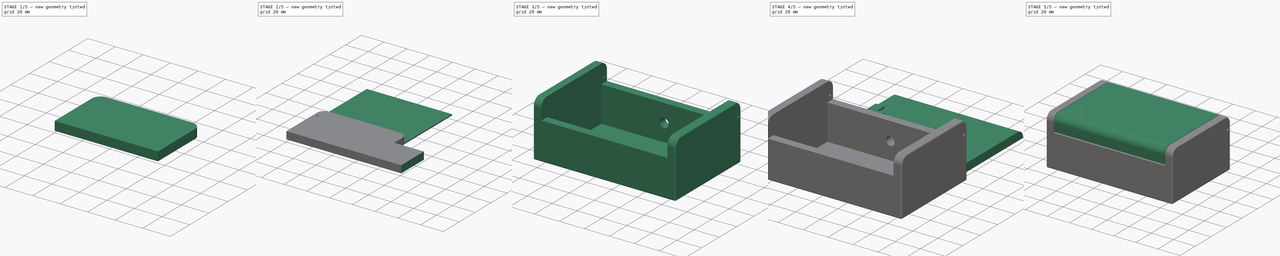
[diagram: build sequence overview — one tinted view per stage of 5, left to right]
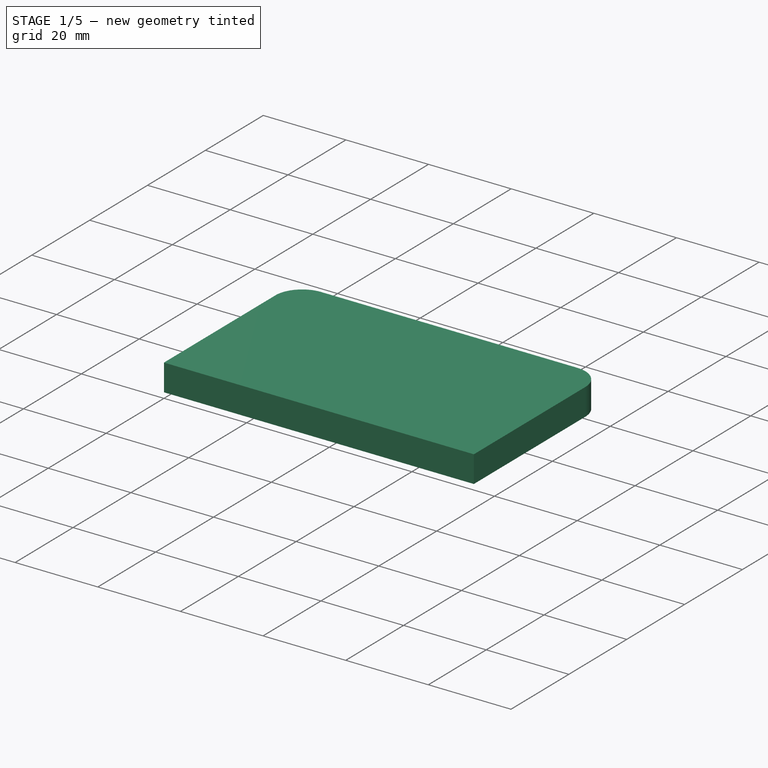
[diagram: stage 1 of 5 — iso view after this stage's code; geometry added in this stage tinted green]
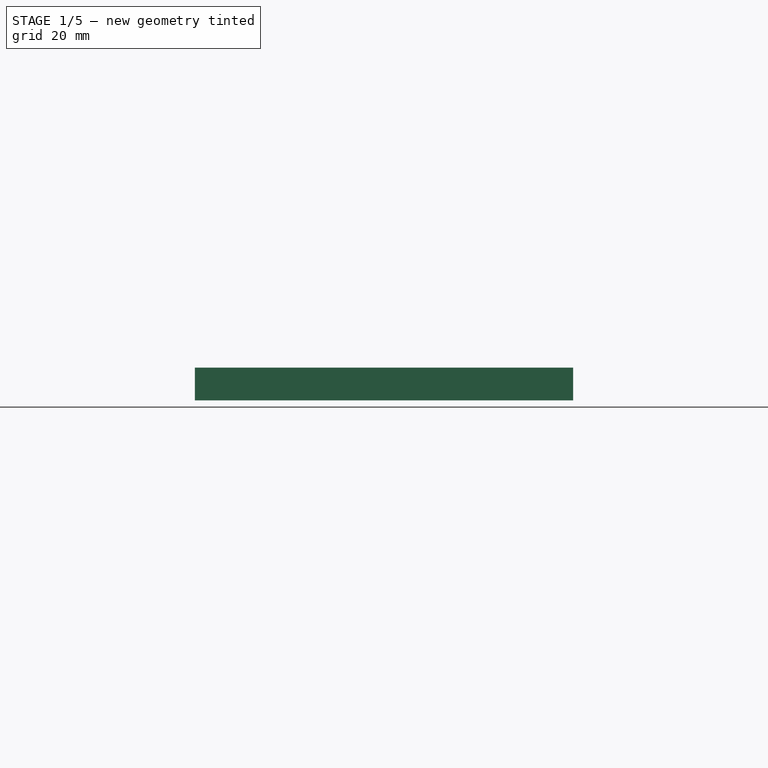
[diagram: stage 1 of 5 — front view after this stage's code; geometry added in this stage tinted green]
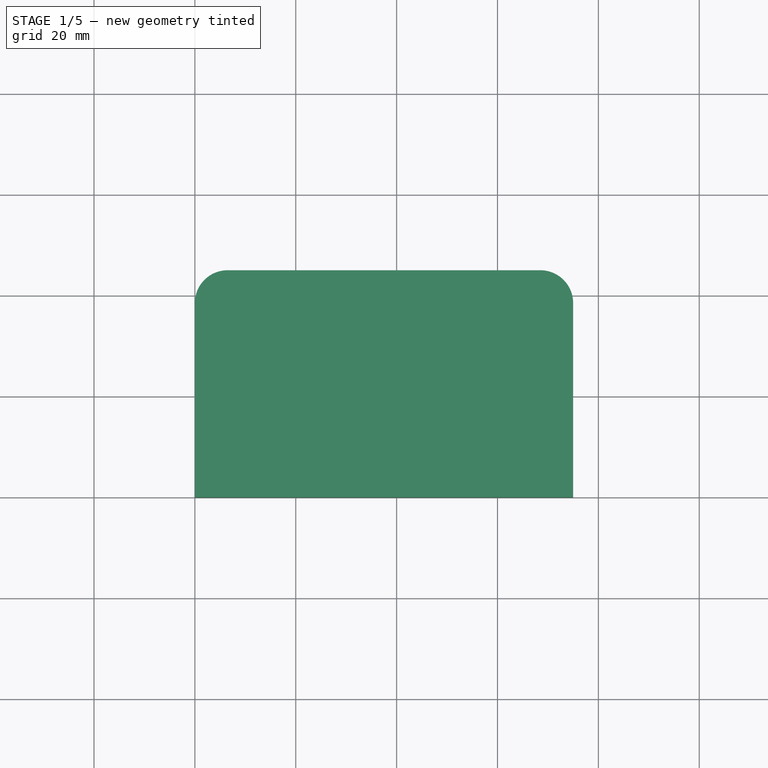
[diagram: stage 1 of 5 — top view after this stage's code; geometry added in this stage tinted green]
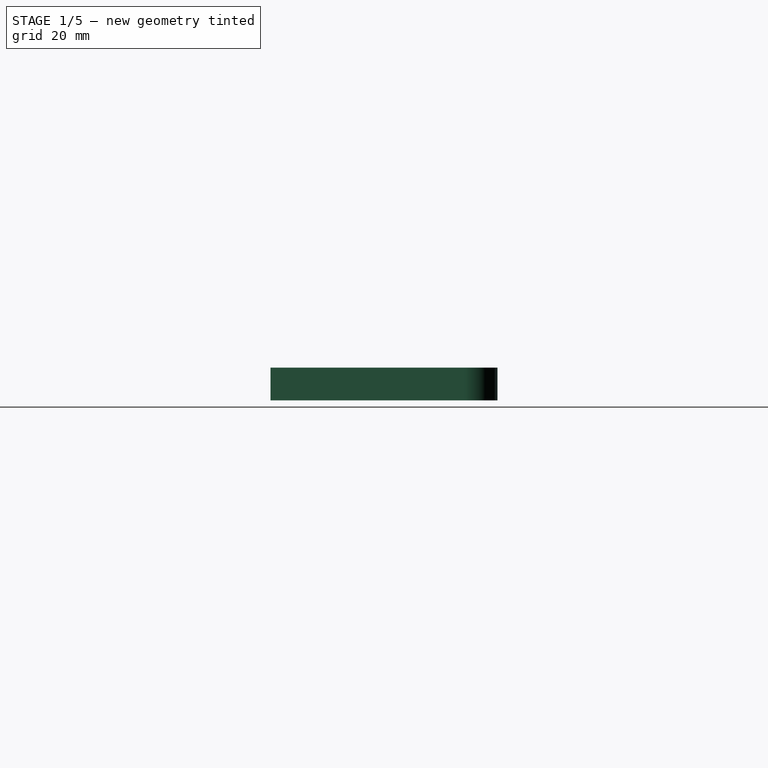
[diagram: stage 1 of 5 — right view after this stage's code; geometry added in this stage tinted green]
FCSTD DOCUMENT  (FreeCAD 0.19R)
Label: Box
License: All rights reserved
LicenseURL: http://en.wikipedia.org/wiki/All_rights_reserved
objects: Sketcher::SketchObject×19, PartDesign::Pad×13, PartDesign::Body×12, PartDesign::Fillet×7, PartDesign::Pocket×6, Part::MultiFuse×2
note: 85 computed .brp shape members not serialized (recipe doc carries the construction recipe); baked Part::Feature solids carry a one-line shape summary decoded from their .brp

FEATURE [Sketcher::SketchObject] Sketch
  FullyConstrained = true
  MapMode = 5
  Support = -> [XY_Plane]
  sketch-geometry (4):
    g0: LineSegment StartX=0 StartY=45 StartZ=0 EndX=75 EndY=45 EndZ=0
    g1: LineSegment StartX=75 StartY=45 StartZ=0 EndX=75 EndY=0 EndZ=0
    g2: LineSegment StartX=75 StartY=0 StartZ=0 EndX=0 EndY=0 EndZ=0
    g3: LineSegment StartX=0 StartY=0 StartZ=0 EndX=0 EndY=45 EndZ=0
  constraints (11):
    c: Coincident(g0,g1)
    c: Coincident(g1,g2)
    c: Coincident(g2,g3)
    c: Coincident(g3,g0)
    c: Horizontal(g0)
    c: Horizontal(g2)
    c: Vertical(g1)
    c: Vertical(g3)
    c: DistanceX(g0,g0) = 75
    c: DistanceY(g1,g1) = 45
    c: Coincident(g2,g-1)
FEATURE [PartDesign::Pad] Pad
  Direction = (1,1,1)
  Length = 6.5
  Length2 = 100
  Profile = -> Sketch
  Type = 0
FEATURE [Sketcher::SketchObject] Sketch001
  FullyConstrained = true
  MapMode = 5
  Support = -> [XY_Plane001]
  sketch-geometry (4):
    g0: LineSegment StartX=0 StartY=45 StartZ=0 EndX=75 EndY=45 EndZ=0
    g1: LineSegment StartX=75 StartY=45 StartZ=0 EndX=75 EndY=0 EndZ=0
    g2: LineSegment StartX=75 StartY=0 StartZ=0 EndX=0 EndY=0 EndZ=0
    g3: LineSegment StartX=0 StartY=0 StartZ=0 EndX=0 EndY=45 EndZ=0
  constraints (11):
    c: Coincident(g0,g1)
    c: Coincident(g1,g2)
    c: Coincident(g2,g3)
    c: Coincident(g3,g0)
    c: Horizontal(g0)
    c: Horizontal(g2)
    c: Vertical(g1)
    c: Vertical(g3)
    c: DistanceX(g0,g0) = 75
    c: DistanceY(g1,g1) = 45
    c: Coincident(g2,g-1)
FEATURE [PartDesign::Pad] Pad001
  Direction = (1,1,1)
  Length = 6.5
  Length2 = 100
  Profile = -> Sketch001
  Type = 0
FEATURE [PartDesign::Body] Body009  label="BMSHolder"
  Group = -> [Sketch012,Pad010,Sketch011,Pocket001]
  Origin = -> Origin009
  Placement = pos=(0,-68.5,16) rot=(0,0,1;0rad)
  Tip = -> Pocket001
FEATURE [PartDesign::Fillet] Fillet
  Base = -> Pad [Edge1,Edge2]
  BaseFeature = -> Pad
  Radius = 6.5
  SupportTransform = false
FEATURE [PartDesign::Fillet] Fillet004
  Base = -> Pad001 [Edge2,Edge1]
  BaseFeature = -> Pad001
  Radius = 6.5
  SupportTransform = false
FEATURE [PartDesign::Fillet] Fillet005
  Base = -> Fillet004 [Face2,Edge18,Edge17]
  BaseFeature = -> Fillet004
  Radius = 1
  SupportTransform = false
FEATURE [PartDesign::Body] Body  label="BoxLeft"
  Group = -> [Sketch,Pad,Fillet,Fillet006,Sketch013,Pocket002]
  Origin = -> Origin
  Placement = pos=(0,0,0) rot=(-0.57735,0.57735,0.57735;4.18879rad)
  Tip = -> Pocket002
FEATURE [Sketcher::SketchObject] Sketch014
  FullyConstrained = true
  MapMode = 5
  Support = -> [XY_Plane001]
  sketch-geometry (1):
    g0: Circle CenterX=3.25 CenterY=34.25 CenterZ=0 NormalX=0 NormalY=0 NormalZ=1 AngleXU=0 Radius=1
  constraints (3):
    c: DistanceX(g-1,g0) = 3.25
    c: DistanceY(g-1,g0) = 34.25
    c: Radius(g0) = 1
FEATURE [PartDesign::Pocket] Pocket003
  BaseFeature = -> Fillet005
  Length = 10
  Length2 = 100
  Profile = -> Sketch014
  Reversed = true
  Type = 0
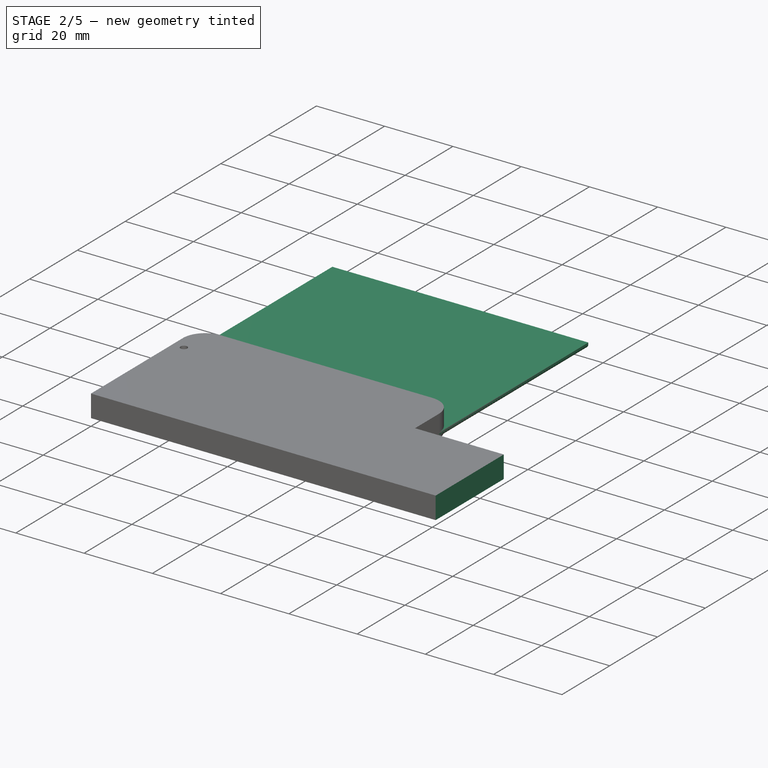
[diagram: stage 2 of 5 — iso view after this stage's code; geometry added in this stage tinted green]
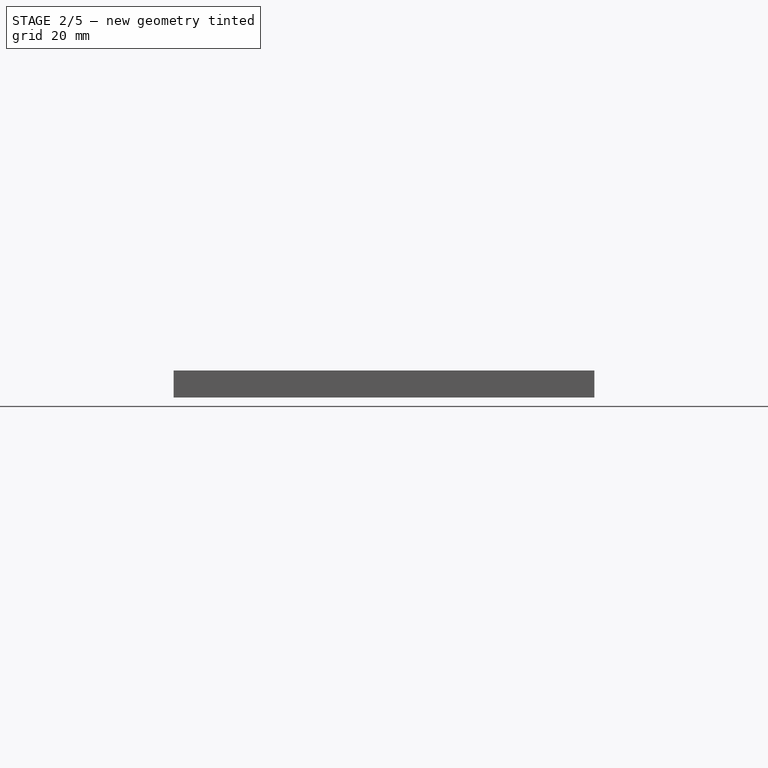
[diagram: stage 2 of 5 — front view after this stage's code; geometry added in this stage tinted green]
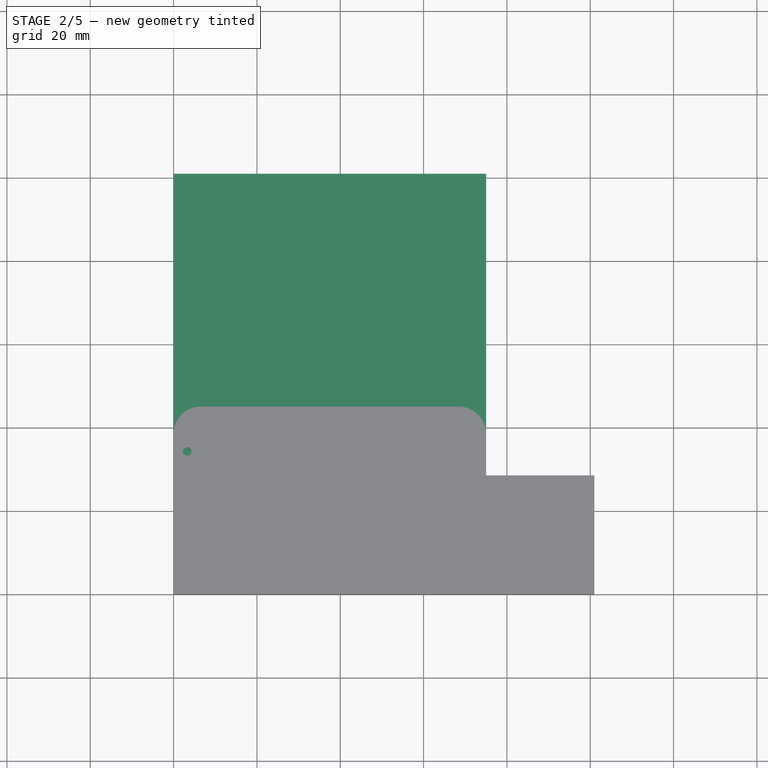
[diagram: stage 2 of 5 — top view after this stage's code; geometry added in this stage tinted green]
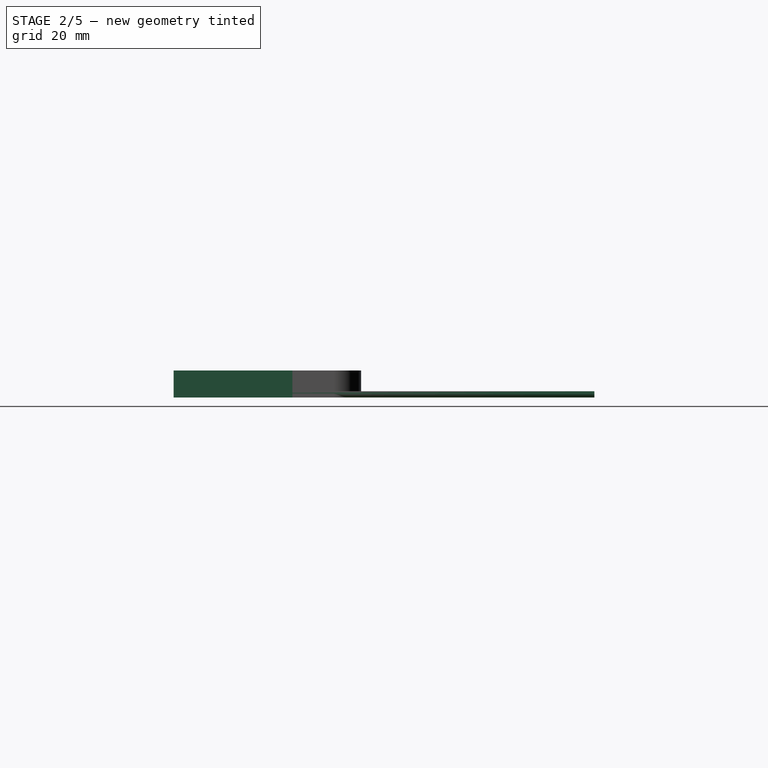
[diagram: stage 2 of 5 — right view after this stage's code; geometry added in this stage tinted green]
FEATURE [PartDesign::Body] Body002  label="BoxBack"
  Group = -> [Sketch002,Pad002]
  Origin = -> Origin002
  Placement = pos=(0,3e-16,1.5) rot=(1,0,0;1.5708rad)
  Tip = -> Pad002
FEATURE [Sketcher::SketchObject] Sketch003
  FullyConstrained = true
  MapMode = 5
  Support = -> [XY_Plane003]
  sketch-geometry (4):
    g0: LineSegment StartX=0 StartY=28.5 StartZ=0 EndX=101 EndY=28.5 EndZ=0
    g1: LineSegment StartX=101 StartY=28.5 StartZ=0 EndX=101 EndY=0 EndZ=0
    g2: LineSegment StartX=101 StartY=0 StartZ=0 EndX=0 EndY=0 EndZ=0
    g3: LineSegment StartX=0 StartY=0 StartZ=0 EndX=0 EndY=28.5 EndZ=0
  constraints (11):
    c: Coincident(g0,g1)
    c: Coincident(g1,g2)
    c: Coincident(g2,g3)
    c: Coincident(g3,g0)
    c: Horizontal(g0)
    c: Horizontal(g2)
    c: Vertical(g1)
    c: Vertical(g3)
    c: DistanceX(g0,g0) = 101
    c: DistanceY(g1,g1) = 28.5
    c: Coincident(g2,g-1)
FEATURE [PartDesign::Pad] Pad003
  Direction = (1,1,1)
  Length = 6.5
  Length2 = 100
  Profile = -> Sketch003
  Type = 0
FEATURE [PartDesign::Body] Body003  label="BoxFront"
  Group = -> [Sketch003,Pad003]
  Origin = -> Origin003
  Placement = pos=(0,-68.5,1.5) rot=(1,0,0;1.5708rad)
  Tip = -> Pad003
FEATURE [Sketcher::SketchObject] Sketch004
  FullyConstrained = true
  MapMode = 5
  Support = -> [XY_Plane004]
  sketch-geometry (4):
    g0: LineSegment StartX=0 StartY=101 StartZ=0 EndX=75 EndY=101 EndZ=0
    g1: LineSegment StartX=75 StartY=101 StartZ=0 EndX=75 EndY=0 EndZ=0
    g2: LineSegment StartX=75 StartY=0 StartZ=0 EndX=0 EndY=0 EndZ=0
    g3: LineSegment StartX=0 StartY=0 StartZ=0 EndX=0 EndY=101 EndZ=0
  constraints (11):
    c: Coincident(g0,g1)
    c: Coincident(g1,g2)
    c: Coincident(g2,g3)
    c: Coincident(g3,g0)
    c: Horizontal(g0)
    c: Horizontal(g2)
    c: Vertical(g1)
    c: Vertical(g3)
    c: DistanceX(g0,g0) = 75
    c: DistanceY(g1,g1) = 101
    c: Coincident(g2,g-1)
FEATURE [PartDesign::Pad] Pad004
  Direction = (1,1,1)
  Length = 1.5
  Length2 = 100
  Profile = -> Sketch004
  Type = 0
FEATURE [PartDesign::Fillet] Fillet006
  Base = -> Fillet [Face5,Edge18,Edge17]
  BaseFeature = -> Fillet
  Radius = 1
  SupportTransform = false
FEATURE [PartDesign::Fillet] Fillet007
  Base = -> Pad004 [Edge6,Edge11]
  BaseFeature = -> Pad004
  Radius = 1
  SupportTransform = false
FEATURE [PartDesign::Body] Body004  label="BoxBottom"
  Group = -> [Sketch004,Pad004,Fillet007]
  Origin = -> Origin004
  Placement = pos=(0,0,0) rot=(0,0,1;4.71239rad)
  Tip = -> Fillet007
FEATURE [Sketcher::SketchObject] Sketch013
  FullyConstrained = true
  MapMode = 5
  Support = -> [XY_Plane]
  sketch-geometry (1):
    g0: Circle CenterX=3.25 CenterY=34.25 CenterZ=0 NormalX=0 NormalY=0 NormalZ=1 AngleXU=0 Radius=1
  constraints (3):
    c: DistanceX(g-1,g0) = 3.25
    c: Radius(g0) = 1
    c: DistanceY(g-1,g0) = 34.25
FEATURE [PartDesign::Pocket] Pocket002
  BaseFeature = -> Fillet006
  Length = 10
  Length2 = 100
  Profile = -> Sketch013
  Reversed = true
  Type = 0
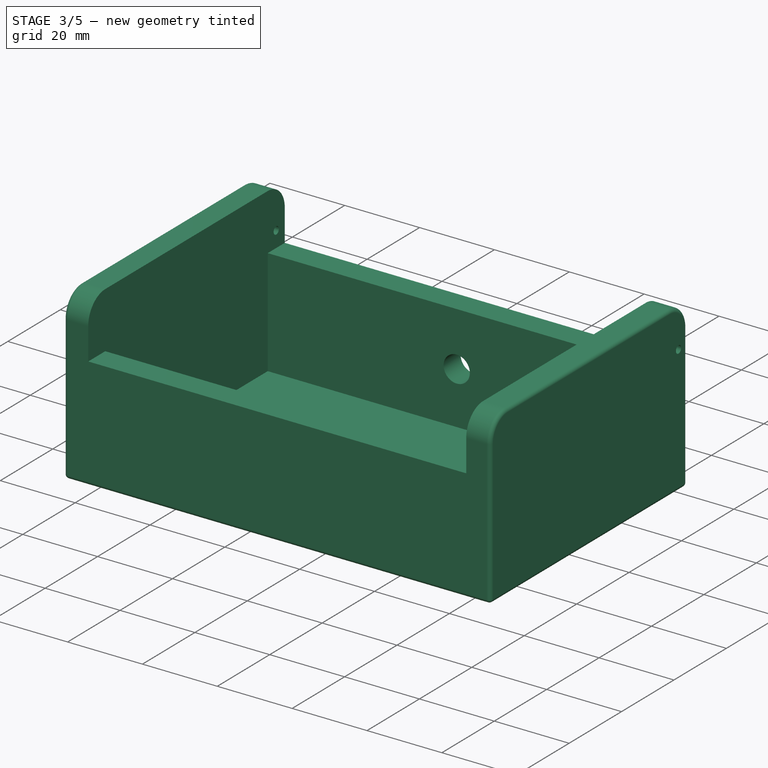
[diagram: stage 3 of 5 — iso view after this stage's code; geometry added in this stage tinted green]
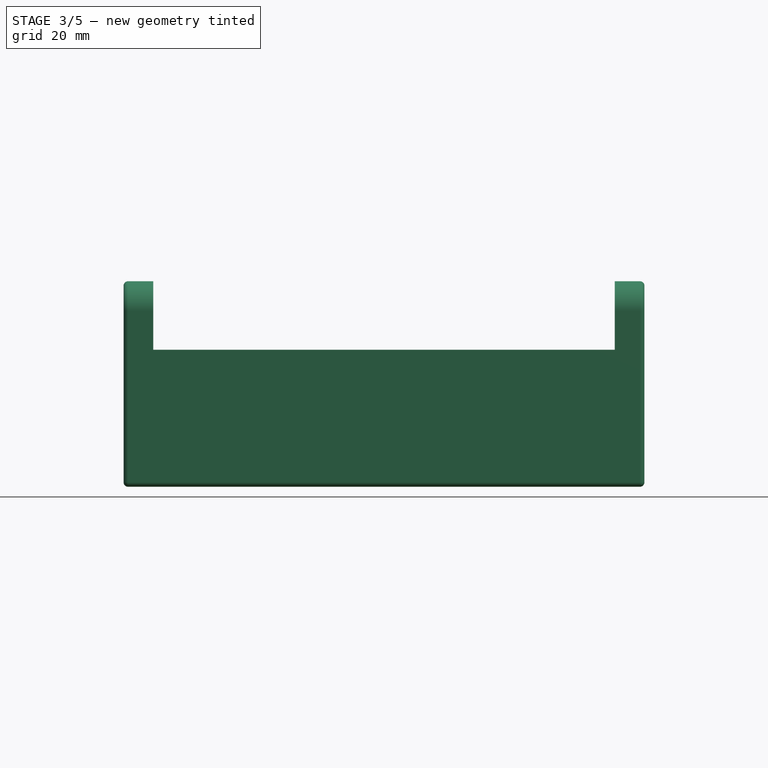
[diagram: stage 3 of 5 — front view after this stage's code; geometry added in this stage tinted green]
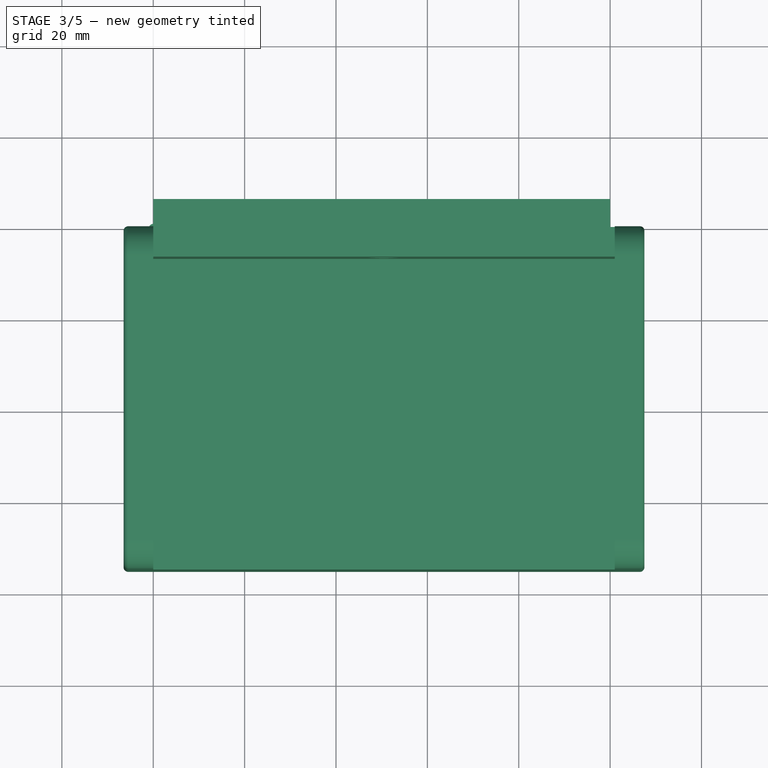
[diagram: stage 3 of 5 — top view after this stage's code; geometry added in this stage tinted green]
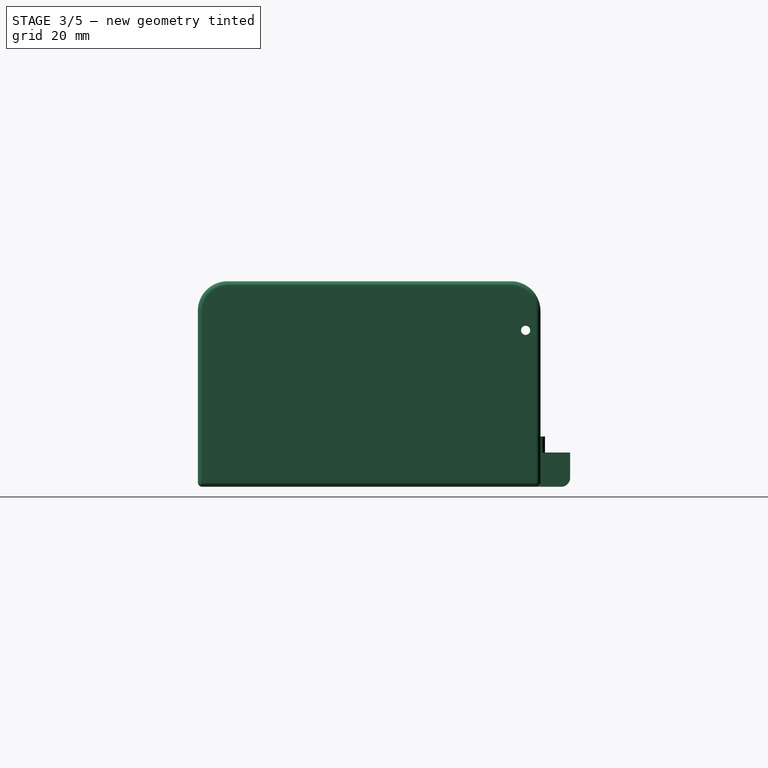
[diagram: stage 3 of 5 — right view after this stage's code; geometry added in this stage tinted green]
FEATURE [Sketcher::SketchObject] Sketch002
  FullyConstrained = true
  MapMode = 5
  Support = -> [XY_Plane002]
  sketch-geometry (6):
    g0: LineSegment StartX=0 StartY=28.5 StartZ=0 EndX=101 EndY=28.5 EndZ=0
    g1: LineSegment StartX=101 StartY=28.5 StartZ=0 EndX=101 EndY=0 EndZ=0
    g2: LineSegment StartX=101 StartY=0 StartZ=0 EndX=0 EndY=0 EndZ=0
    g3: LineSegment StartX=0 StartY=0 StartZ=0 EndX=0 EndY=28.5 EndZ=0
    g4: Circle CenterX=50.5 CenterY=14 CenterZ=0 NormalX=0 NormalY=0 NormalZ=1 AngleXU=0 Radius=3.5
    g5: GeomPoint X=50.5 Y=0 Z=0
  constraints (15):
    c: Coincident(g0,g1)
    c: Coincident(g1,g2)
    c: Coincident(g2,g3)
    c: Coincident(g3,g0)
    c: Horizontal(g0)
    c: Horizontal(g2)
    c: Vertical(g1)
    c: Vertical(g3)
    c: DistanceX(g0,g0) = 101
    c: DistanceY(g1,g1) = 28.5
    c: Coincident(g2,g-1)
    c: Radius(g4) = 3.5
    c: Symmetric(g2,g1,g5)
    c: Vertical(g5,g4)
    c: DistanceY(g5,g4) = 14
FEATURE [PartDesign::Pad] Pad002
  Direction = (1,1,1)
  Length = 6.5
  Length2 = 100
  Profile = -> Sketch002
  Type = 0
FEATURE [Sketcher::SketchObject] Sketch005
  FullyConstrained = true
  MapMode = 5
  Support = -> [XY_Plane005]
  sketch-geometry (4):
    g0: LineSegment StartX=0 StartY=6.5 StartZ=0 EndX=100 EndY=6.5 EndZ=0
    g1: LineSegment StartX=100 StartY=6.5 StartZ=0 EndX=100 EndY=0 EndZ=0
    g2: LineSegment StartX=100 StartY=0 StartZ=0 EndX=0 EndY=0 EndZ=0
    g3: LineSegment StartX=0 StartY=0 StartZ=0 EndX=0 EndY=6.5 EndZ=0
  constraints (11):
    c: Coincident(g0,g1)
    c: Coincident(g1,g2)
    c: Coincident(g2,g3)
    c: Coincident(g3,g0)
    c: Horizontal(g0)
    c: Horizontal(g2)
    c: Vertical(g1)
    c: Vertical(g3)
    c: DistanceX(g0,g0) = 100
    c: DistanceY(g1,g1) = 6.5
    c: Coincident(g2,g-1)
FEATURE [PartDesign::Pad] Pad005
  Direction = (1,1,1)
  Length = 7.5
  Length2 = 100
  Profile = -> Sketch005
  Type = 0
FEATURE [PartDesign::Body] Body007  label="TopTop"
  Group = -> [Sketch007,Pad007,Fillet002]
  Origin = -> Origin007
  Placement = pos=(0.5,-75,38.5) rot=(0,0,1;0rad)
  Tip = -> Fillet002
FEATURE [PartDesign::Fillet] Fillet003
  Base = -> Pad005 [Edge3]
  BaseFeature = -> Pad005
  Radius = 2
  SupportTransform = false
FEATURE [Sketcher::SketchObject] Sketch017
  FullyConstrained = true
  MapMode = 5
  Support = -> [XY_Plane010]
  sketch-geometry (1):
    g0: Circle CenterX=0 CenterY=0 CenterZ=0 NormalX=0 NormalY=0 NormalZ=1 AngleXU=0 Radius=1
  constraints (2):
    c: Coincident(g0,g-1)
    c: Radius(g0) = 1
FEATURE [PartDesign::Pad] Pad011
  Direction = (1,1,1)
  Length = 11
  Length2 = 100
  Profile = -> Sketch017
  Type = 0
FEATURE [PartDesign::Body] Body010  label="BoxPinLeft"
  Group = -> [Sketch017,Pad011]
  Origin = -> Origin010
  Placement = pos=(4.5,-3.25,34.25) rot=(0,1,0;4.71239rad)
  Tip = -> Pad011
FEATURE [Sketcher::SketchObject] Sketch018
  FullyConstrained = true
  MapMode = 5
  Support = -> [XY_Plane011]
  sketch-geometry (1):
    g0: Circle CenterX=0 CenterY=0 CenterZ=0 NormalX=0 NormalY=0 NormalZ=1 AngleXU=0 Radius=1
  constraints (2):
    c: Coincident(g0,g-1)
    c: Radius(g0) = 1
FEATURE [PartDesign::Pad] Pad012
  Direction = (1,1,1)
  Length = 11
  Length2 = 100
  Profile = -> Sketch018
  Type = 0
FEATURE [PartDesign::Body] Body011  label="BoxPinRight"
  Group = -> [Sketch018,Pad012]
  Origin = -> Origin011
  Placement = pos=(107.5,-3.25,34.25) rot=(0,1,0;4.71239rad)
  Tip = -> Pad012
FEATURE [Part::MultiFuse] Fusion001  label="Box"
  Shapes = -> [Body004,Body003,Body002,Body001,Body]
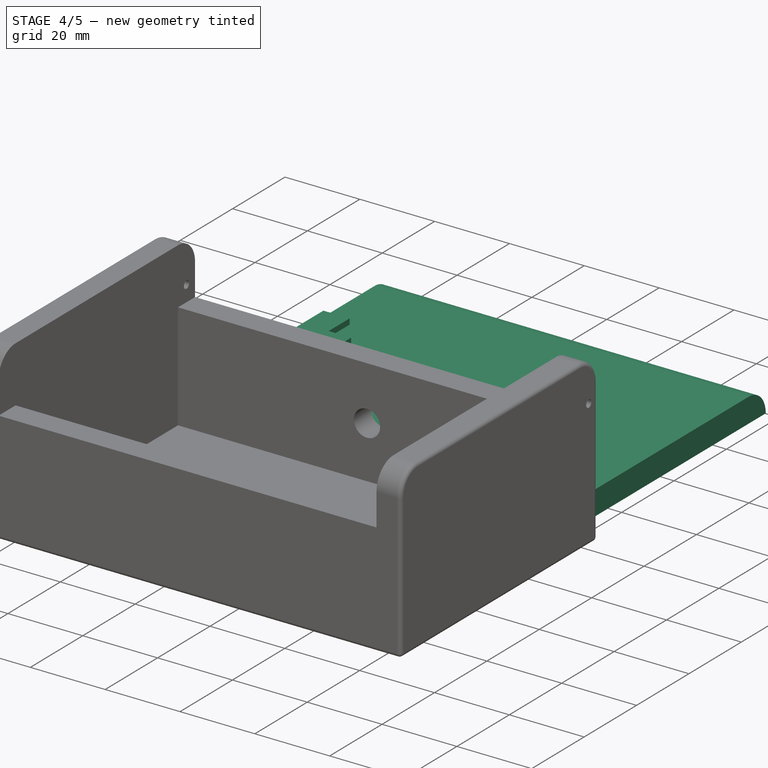
[diagram: stage 4 of 5 — iso view after this stage's code; geometry added in this stage tinted green]
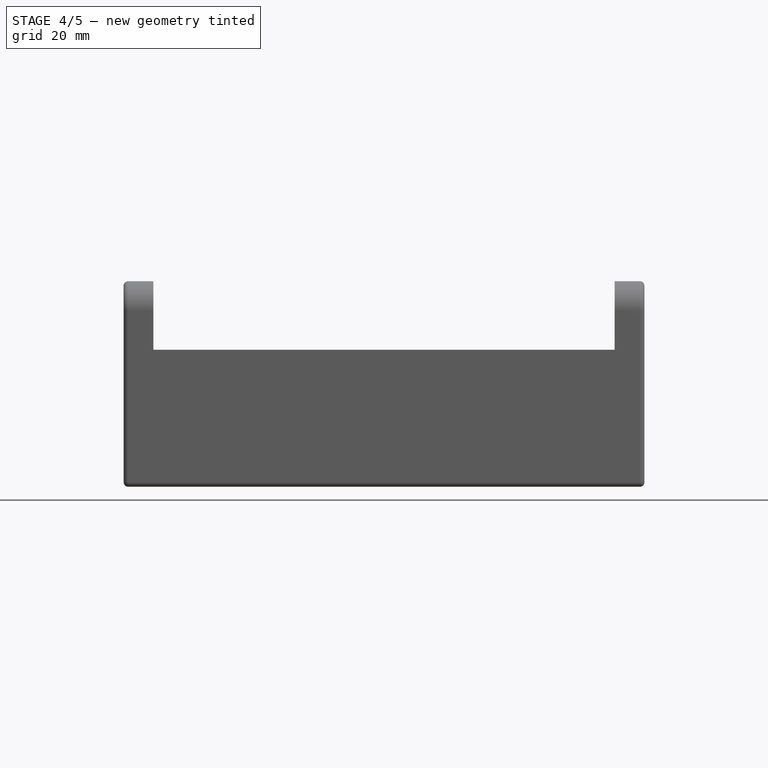
[diagram: stage 4 of 5 — front view after this stage's code; geometry added in this stage tinted green]
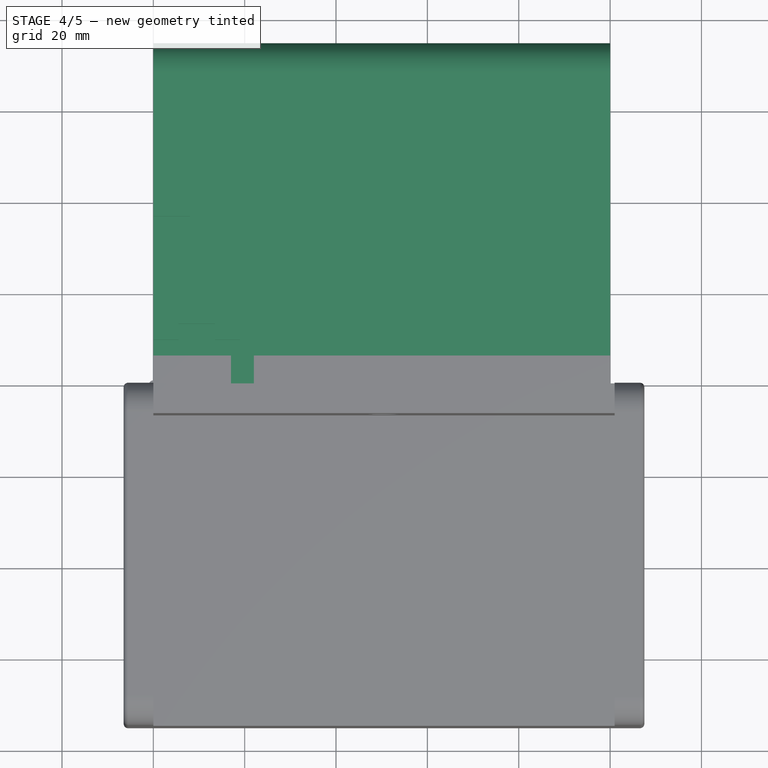
[diagram: stage 4 of 5 — top view after this stage's code; geometry added in this stage tinted green]
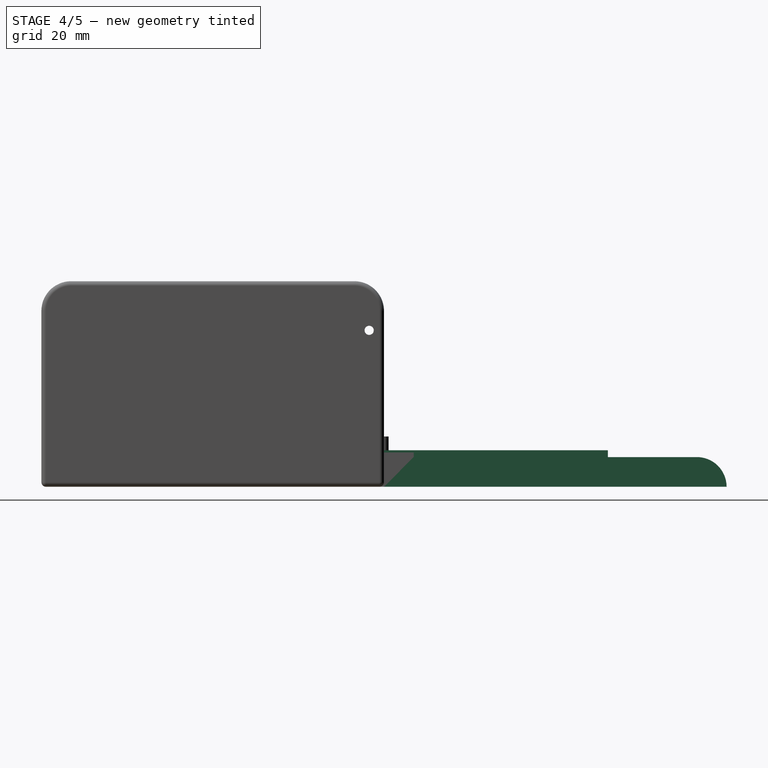
[diagram: stage 4 of 5 — right view after this stage's code; geometry added in this stage tinted green]
FEATURE [PartDesign::Body] Body006  label="TopFront"
  Group = -> [Sketch006,Pad006]
  Origin = -> Origin006
  Placement = pos=(0.5,-75,31) rot=(0,0,1;0rad)
  Tip = -> Pad006
FEATURE [Sketcher::SketchObject] Sketch007
  FullyConstrained = true
  MapMode = 5
  Support = -> [XY_Plane007]
  sketch-geometry (4):
    g0: LineSegment StartX=0 StartY=75 StartZ=0 EndX=100 EndY=75 EndZ=0
    g1: LineSegment StartX=100 StartY=75 StartZ=0 EndX=100 EndY=0 EndZ=0
    g2: LineSegment StartX=100 StartY=0 StartZ=0 EndX=0 EndY=0 EndZ=0
    g3: LineSegment StartX=0 StartY=0 StartZ=0 EndX=0 EndY=75 EndZ=0
  constraints (11):
    c: Coincident(g0,g1)
    c: Coincident(g1,g2)
    c: Coincident(g2,g3)
    c: Coincident(g3,g0)
    c: Horizontal(g0)
    c: Horizontal(g2)
    c: Vertical(g1)
    c: Vertical(g3)
    c: DistanceX(g0,g0) = 100
    c: DistanceY(g1,g1) = 75
    c: Coincident(g2,g-1)
FEATURE [PartDesign::Pad] Pad007
  Direction = (1,1,1)
  Length = 6.5
  Length2 = 100
  Profile = -> Sketch007
  Type = 0
FEATURE [PartDesign::Body] Body008  label="ConnectorHolder"
  Group = -> [Sketch008,Pad008,Sketch009,Pad009,Sketch010,Pocket]
  Origin = -> Origin008
  Placement = pos=(50.5,-6.5,19) rot=(1,0,0;1.5708rad)
  Tip = -> Pocket
FEATURE [Sketcher::SketchObject] Sketch011
  FullyConstrained = true
  MapMode = 5
  Placement = pos=(0,0,0) rot=(0.57735,0.57735,0.57735;2.0944rad)
  Support = -> [YZ_Plane009]
  sketch-geometry (1):
    g0: Circle CenterX=45 CenterY=4 CenterZ=0 NormalX=0 NormalY=0 NormalZ=1 AngleXU=0 Radius=2
  constraints (3):
    c: Radius(g0) = 2
    c: DistanceY(g-1,g0) = 4
    c: DistanceX(g-1,g0) = 45
FEATURE [Sketcher::SketchObject] Sketch012
  FullyConstrained = true
  MapMode = 5
  Support = -> [XY_Plane009]
  sketch-geometry (20):
    g0: LineSegment StartX=0 StartY=49 StartZ=0 EndX=0 EndY=37 EndZ=0
    g1: LineSegment StartX=0 StartY=37 StartZ=0 EndX=8 EndY=37 EndZ=0
    g2: LineSegment StartX=8 StartY=37 StartZ=0 EndX=8 EndY=21 EndZ=0
    g3: LineSegment StartX=8 StartY=21 StartZ=0 EndX=0 EndY=21 EndZ=0
    g4: LineSegment StartX=0 StartY=21 StartZ=0 EndX=0 EndY=10 EndZ=0
    g5: LineSegment StartX=0 StartY=10 StartZ=0 EndX=5.5 EndY=10 EndZ=0
    g6: LineSegment StartX=5.5 StartY=10 StartZ=0 EndX=5.5 EndY=13.5 EndZ=0
    g7: LineSegment StartX=5.5 StartY=13.5 StartZ=0 EndX=13.5 EndY=13.5 EndZ=0
    g8: LineSegment StartX=13.5 StartY=13.5 StartZ=0 EndX=13.5 EndY=10 EndZ=0
    g9: LineSegment StartX=13.5 StartY=10 StartZ=0 EndX=19 EndY=10 EndZ=0
    g10: LineSegment StartX=19 StartY=10 StartZ=0 EndX=19 EndY=8 EndZ=0
    g11: LineSegment StartX=19 StartY=8 StartZ=0 EndX=17 EndY=8 EndZ=0
    g12: LineSegment StartX=17 StartY=8 StartZ=0 EndX=17 EndY=0 EndZ=0
    g13: LineSegment StartX=17 StartY=0 StartZ=0 EndX=22 EndY=0 EndZ=0
    g14: LineSegment StartX=22 StartY=0 StartZ=0 EndX=22 EndY=21 EndZ=0
    g15: LineSegment StartX=22 StartY=21 StartZ=0 EndX=13 EndY=21 EndZ=0
    g16: LineSegment StartX=13 StartY=21 StartZ=0 EndX=13 EndY=41 EndZ=0
    g17: LineSegment StartX=0 StartY=49 StartZ=0 EndX=7 EndY=49 EndZ=0
    g18: LineSegment StartX=7 StartY=49 StartZ=0 EndX=7 EndY=41 EndZ=0
    g19: LineSegment StartX=7 StartY=41 StartZ=0 EndX=13 EndY=41 EndZ=0
  constraints (60):
    c: Vertical(g0)
    c: Coincident(g0,g1)
    c: Horizontal(g1)
    c: Coincident(g1,g2)
    c: Vertical(g2)
    c: Coincident(g2,g3)
    c: Horizontal(g3)
    c: Coincident(g3,g4)
    c: Vertical(g4)
    c: Coincident(g4,g5)
    c: Horizontal(g5)
    c: Coincident(g5,g6)
    c: Vertical(g6)
    c: Coincident(g6,g7)
    c: Horizontal(g7)
    c: Coincident(g7,g8)
    c: Vertical(g8)
    c: Coincident(g8,g9)
    c: Horizontal(g9)
    c: Coincident(g9,g10)
    c: Vertical(g10)
    c: Coincident(g10,g11)
    c: Horizontal(g11)
    c: Coincident(g11,g12)
    c: Vertical(g12)
    c: Coincident(g12,g13)
    c: Horizontal(g13)
    c: Coincident(g13,g14)
    c: Vertical(g14)
    c: Coincident(g14,g15)
    c: Horizontal(g15)
    c: Coincident(g15,g16)
    c: Vertical(g16)
    c: Vertical(g3,g0)
    c: DistanceX(g4,g13) = 22
    c: DistanceX(g4,g9) = 19
    c: DistanceX(g4,g12) = 17
    c: DistanceX(g5,g5) = 5.5
    c: DistanceX(g7,g7) = 8
    c: DistanceX(g3,g3) = 8
    c: DistanceY(g2,g2) = 16
    c: DistanceY(g0,g0) = 12
    c: DistanceX(g0,g16) = 13
    c: DistanceY(g12,g12) = 8
    c: DistanceY(g10,g10) = 2
    c: Horizontal(g5,g8)
    c: DistanceY(g6,g6) = 3.5
    c: DistanceY(g14,g14) = 21
    c: Horizontal(g2,g15)
    c: PointOnObject(g4,g-2)
    c: PointOnObject(g12,g-1)
    c: Coincident(g0,g17)
    c: Horizontal(g17)
    c: Coincident(g17,g18)
    c: Vertical(g18)
    c: Coincident(g18,g19)
    c: Coincident(g19,g16)
    c: Horizontal(g19)
    c: DistanceX(g17,g17) = 7
    c: DistanceY(g1,g18) = 4
FEATURE [PartDesign::Pad] Pad010
  Direction = (1,1,1)
  Length = 8
  Length2 = 100
  Profile = -> Sketch012
  Type = 0
FEATURE [PartDesign::Fillet] Fillet002
  Base = -> Pad007 [Edge10,Edge4]
  BaseFeature = -> Pad007
  Radius = 6.49
  SupportTransform = false
FEATURE [PartDesign::Body] Body001  label="BoxRight"
  Group = -> [Sketch001,Pad001,Fillet004,Fillet005,Sketch014,Pocket003]
  Origin = -> Origin001
  Placement = pos=(107.5,-1.79e-14,0) rot=(-0.57735,0.57735,0.57735;4.18879rad)
  Tip = -> Pocket003
FEATURE [Sketcher::SketchObject] Sketch015
  FullyConstrained = true
  MapMode = 5
  Placement = pos=(0,0,0) rot=(0.57735,0.57735,0.57735;2.0944rad)
  Support = -> [YZ_Plane005]
  sketch-geometry (1):
    g0: Circle CenterX=3.25 CenterY=3.25 CenterZ=0 NormalX=0 NormalY=0 NormalZ=1 AngleXU=0 Radius=1.5
  constraints (3):
    c: DistanceY(g-1,g0) = 3.25
    c: DistanceX(g-1,g0) = 3.25
    c: Radius(g0) = 1.5
FEATURE [PartDesign::Pocket] Pocket004
  BaseFeature = -> Fillet003
  Length = 5
  Length2 = 100
  Profile = -> Sketch015
  Reversed = true
  Type = 0
FEATURE [Sketcher::SketchObject] Sketch016
  AttachmentOffset = pos=(0,0,100) rot=(0,0,1;0rad)
  FullyConstrained = true
  MapMode = 5
  Placement = pos=(100,-2.22e-14,2.22e-14) rot=(0.57735,0.57735,0.57735;2.0944rad)
  Support = -> [YZ_Plane005]
  sketch-geometry (1):
    g0: Circle CenterX=3.25 CenterY=3.25 CenterZ=0 NormalX=0 NormalY=0 NormalZ=1 AngleXU=0 Radius=1.5
  constraints (3):
    c: DistanceX(g-1,g0) = 3.25
    c: DistanceY(g-1,g0) = 3.25
    c: Radius(g0) = 1.5
FEATURE [PartDesign::Pocket] Pocket005
  BaseFeature = -> Pocket004
  Length = 5
  Length2 = 100
  Profile = -> Sketch016
  Type = 0
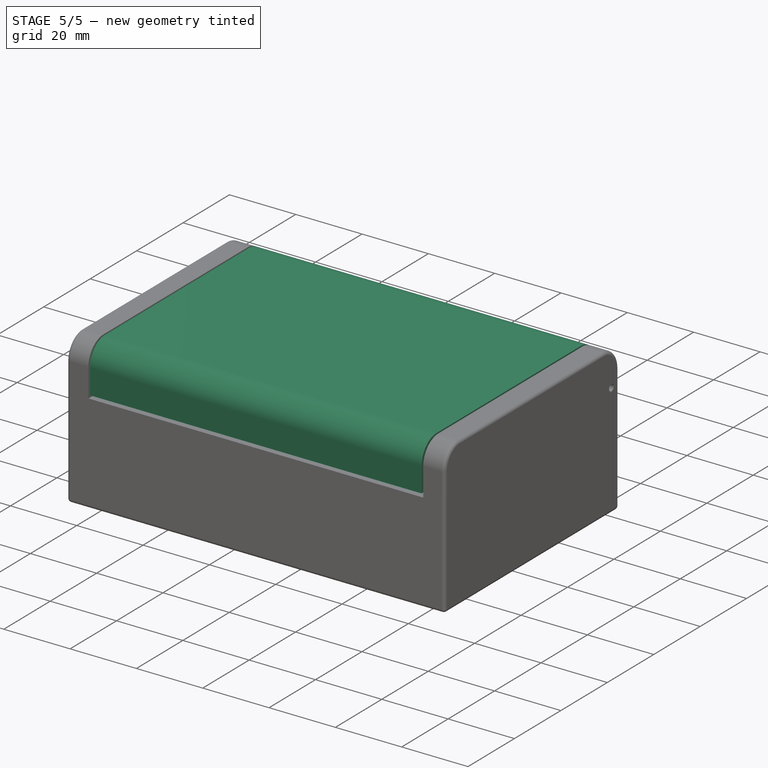
[diagram: stage 5 of 5 — iso view after this stage's code; geometry added in this stage tinted green]
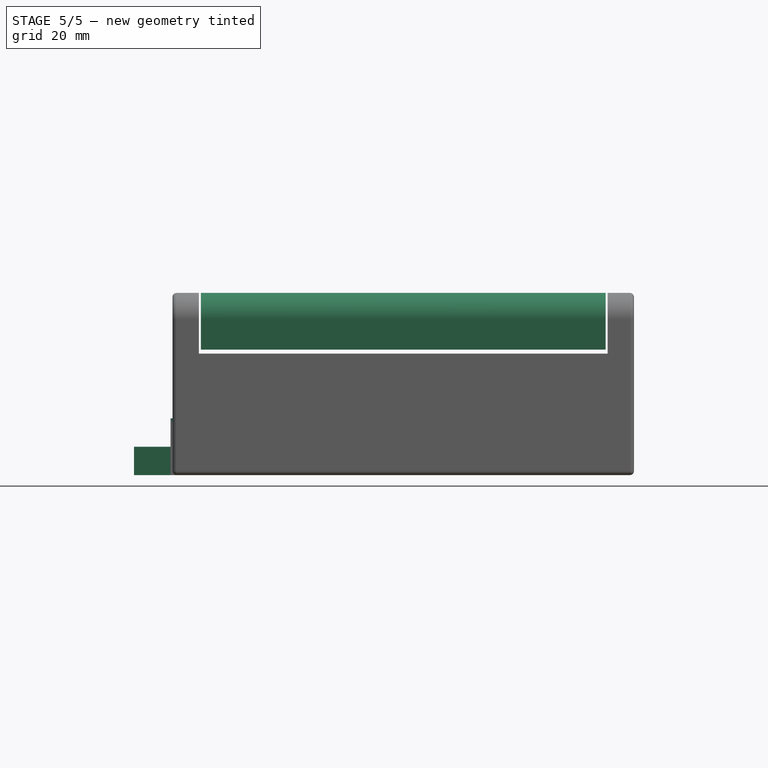
[diagram: stage 5 of 5 — front view after this stage's code; geometry added in this stage tinted green]
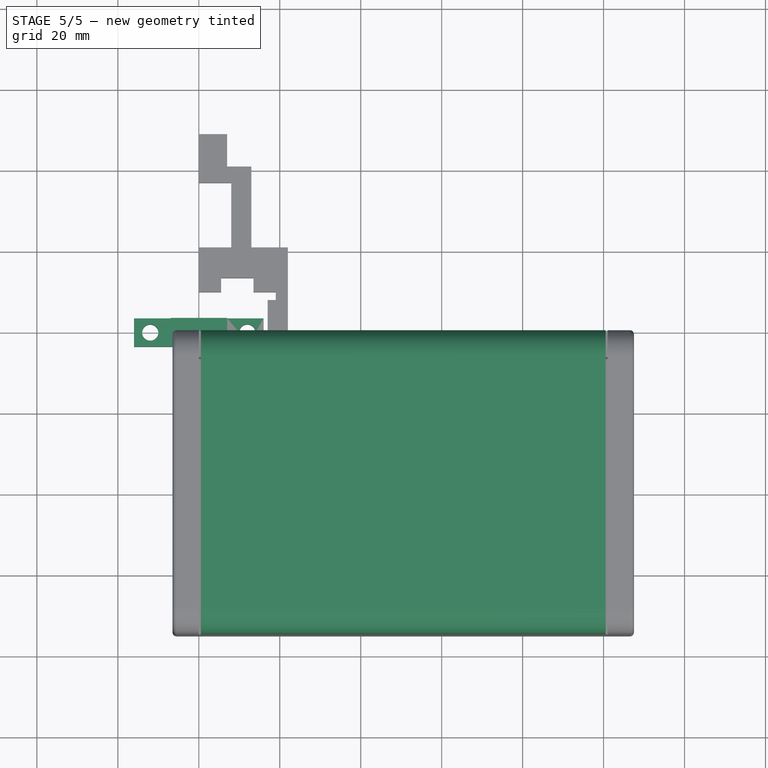
[diagram: stage 5 of 5 — top view after this stage's code; geometry added in this stage tinted green]
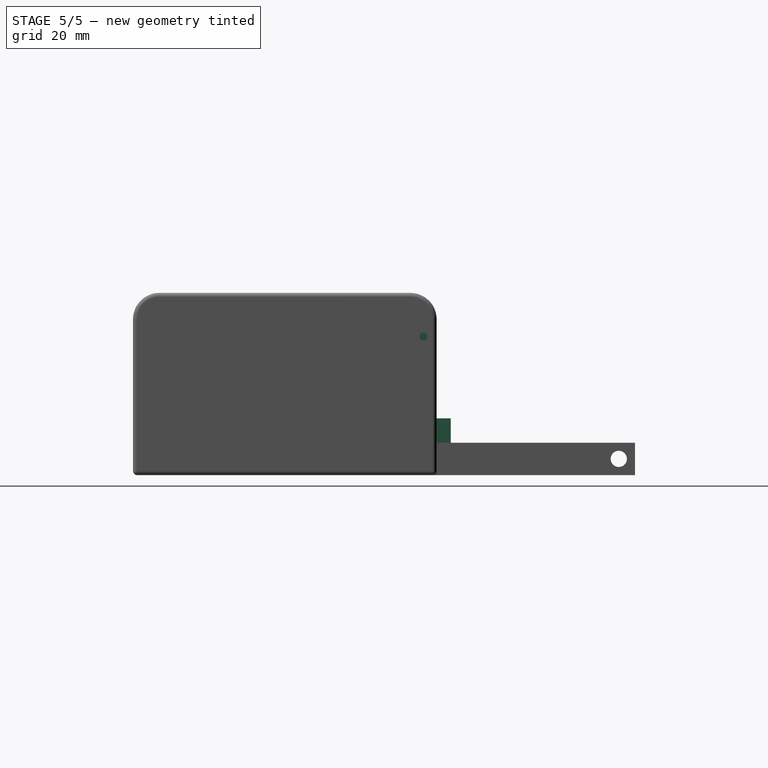
[diagram: stage 5 of 5 — right view after this stage's code; geometry added in this stage tinted green]
FEATURE [Sketcher::SketchObject] Sketch006
  FullyConstrained = true
  MapMode = 5
  Support = -> [XY_Plane006]
  sketch-geometry (4):
    g0: LineSegment StartX=0 StartY=6.5 StartZ=0 EndX=100 EndY=6.5 EndZ=0
    g1: LineSegment StartX=100 StartY=6.5 StartZ=0 EndX=100 EndY=0 EndZ=0
    g2: LineSegment StartX=100 StartY=0 StartZ=0 EndX=0 EndY=0 EndZ=0
    g3: LineSegment StartX=0 StartY=0 StartZ=0 EndX=0 EndY=6.5 EndZ=0
  constraints (11):
    c: Coincident(g0,g1)
    c: Coincident(g1,g2)
    c: Coincident(g2,g3)
    c: Coincident(g3,g0)
    c: Horizontal(g0)
    c: Horizontal(g2)
    c: Vertical(g1)
    c: Vertical(g3)
    c: DistanceX(g0,g0) = 100
    c: DistanceY(g1,g1) = 6.5
    c: Coincident(g2,g-1)
FEATURE [PartDesign::Pad] Pad006
  Direction = (1,1,1)
  Length = 7.5
  Length2 = 100
  Profile = -> Sketch006
  Type = 0
FEATURE [Sketcher::SketchObject] Sketch008
  FullyConstrained = true
  MapMode = 5
  Support = -> [XY_Plane008]
  sketch-geometry (6):
    g0: LineSegment StartX=-16 StartY=3.5 StartZ=0 EndX=16 EndY=3.5 EndZ=0
    g1: LineSegment StartX=16 StartY=3.5 StartZ=0 EndX=16 EndY=-3.5 EndZ=0
    g2: LineSegment StartX=-16 StartY=-3.5 StartZ=0 EndX=-16 EndY=3.5 EndZ=0
    g3: Circle CenterX=-12 CenterY=0 CenterZ=0 NormalX=0 NormalY=0 NormalZ=1 AngleXU=0 Radius=2
    g4: Circle CenterX=12 CenterY=0 CenterZ=0 NormalX=0 NormalY=0 NormalZ=1 AngleXU=0 Radius=2
    g5: LineSegment StartX=-16 StartY=-3.5 StartZ=0 EndX=16 EndY=-3.5 EndZ=0
  constraints (16):
    c: Coincident(g0,g1)
    c: Coincident(g2,g0)
    c: Horizontal(g0)
    c: Vertical(g1)
    c: Vertical(g2)
    c: Symmetric(g0,g2,g-1)
    c: DistanceX(g0,g0) = 32
    c: DistanceY(g1,g1) = 7
    c: PointOnObject(g3,g-1)
    c: Symmetric(g3,g4,g-1)
    c: Radius(g3) = 2
    c: Radius(g4) = 2
    c: DistanceX(g2,g3) = 4
    c: Coincident(g5,g2)
    c: Coincident(g5,g1)
    c: Horizontal(g5)
FEATURE [PartDesign::Pad] Pad008
  Direction = (1,1,1)
  Length = 7
  Length2 = 100
  Profile = -> Sketch008
  Type = 0
FEATURE [Sketcher::SketchObject] Sketch009
  FullyConstrained = true
  MapMode = 5
  Support = -> [XY_Plane008]
  sketch-geometry (4):
    g0: LineSegment StartX=-7 StartY=3.5 StartZ=0 EndX=7 EndY=3.5 EndZ=0
    g1: LineSegment StartX=7 StartY=3.5 StartZ=0 EndX=7 EndY=-3.5 EndZ=0
    g2: LineSegment StartX=7 StartY=-3.5 StartZ=0 EndX=-7 EndY=-3.5 EndZ=0
    g3: LineSegment StartX=-7 StartY=-3.5 StartZ=0 EndX=-7 EndY=3.5 EndZ=0
  constraints (11):
    c: Coincident(g0,g1)
    c: Coincident(g1,g2)
    c: Coincident(g2,g3)
    c: Coincident(g3,g0)
    c: Horizontal(g0)
    c: Horizontal(g2)
    c: Vertical(g1)
    c: Vertical(g3)
    c: DistanceX(g0,g0) = 14
    c: DistanceY(g1,g1) = 7
    c: Symmetric(g1,g0,g-1)
FEATURE [PartDesign::Pad] Pad009
  BaseFeature = -> Pad008
  Direction = (1,1,1)
  Length = 14
  Length2 = 100
  Profile = -> Sketch009
  Type = 0
FEATURE [Sketcher::SketchObject] Sketch010
  FullyConstrained = true
  MapMode = 5
  Support = -> [XY_Plane008]
  sketch-geometry (4):
    g0: LineSegment StartX=-6.1 StartY=1.5 StartZ=0 EndX=6.1 EndY=1.5 EndZ=0
    g1: LineSegment StartX=6.1 StartY=1.5 StartZ=0 EndX=6.1 EndY=-3.5 EndZ=0
    g2: LineSegment StartX=6.1 StartY=-3.5 StartZ=0 EndX=-6.1 EndY=-3.5 EndZ=0
    g3: LineSegment StartX=-6.1 StartY=-3.5 StartZ=0 EndX=-6.1 EndY=1.5 EndZ=0
  constraints (11):
    c: Coincident(g0,g1)
    c: Coincident(g1,g2)
    c: Coincident(g2,g3)
    c: Coincident(g3,g0)
    c: Horizontal(g2)
    c: Vertical(g1)
    c: Vertical(g3)
    c: DistanceY(g1,g1) = 5
    c: DistanceX(g0,g0) = 12.2
    c: Symmetric(g0,g0,g-2)
    c: DistanceY(g2,g-1) = 3.5
FEATURE [PartDesign::Pocket] Pocket
  BaseFeature = -> Pad009
  Length = 12
  Length2 = 100
  Profile = -> Sketch010
  Reversed = true
  Type = 0
FEATURE [PartDesign::Pocket] Pocket001
  BaseFeature = -> Pad010
  Length = 10
  Length2 = 100
  Profile = -> Sketch011
  Reversed = true
  Type = 0
FEATURE [PartDesign::Body] Body005  label="TopBack"
  Group = -> [Sketch005,Pad005,Fillet003,Sketch015,Pocket004,Sketch016,Pocket005]
  Origin = -> Origin005
  Placement = pos=(0.5,-6.5,31) rot=(0,0,1;0rad)
  Tip = -> Pocket005
FEATURE [Part::MultiFuse] Fusion  label="Top"
  Shapes = -> [Body005,Body006,Body007]
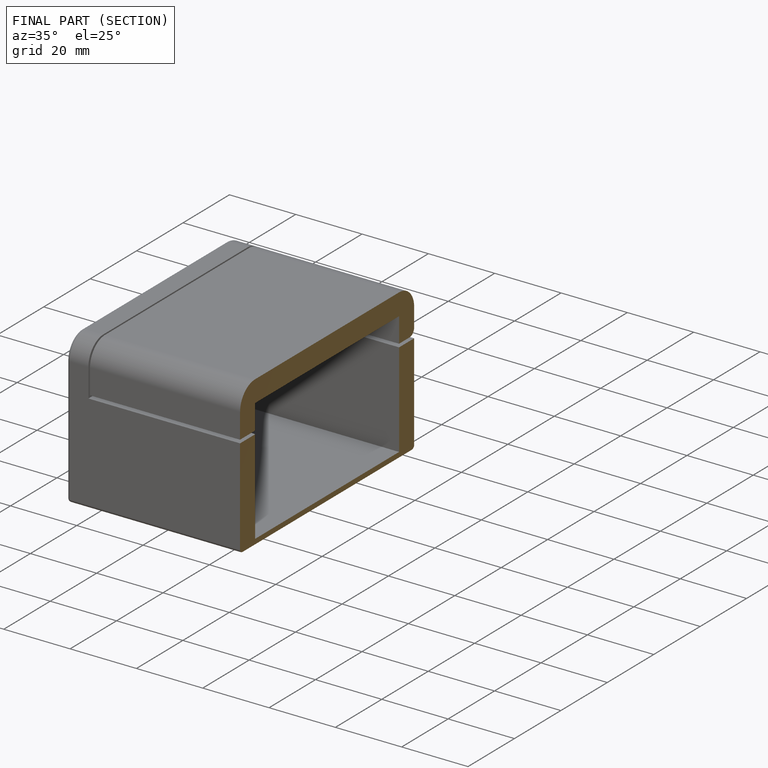
[diagram: finished part — half-section view (interior)]
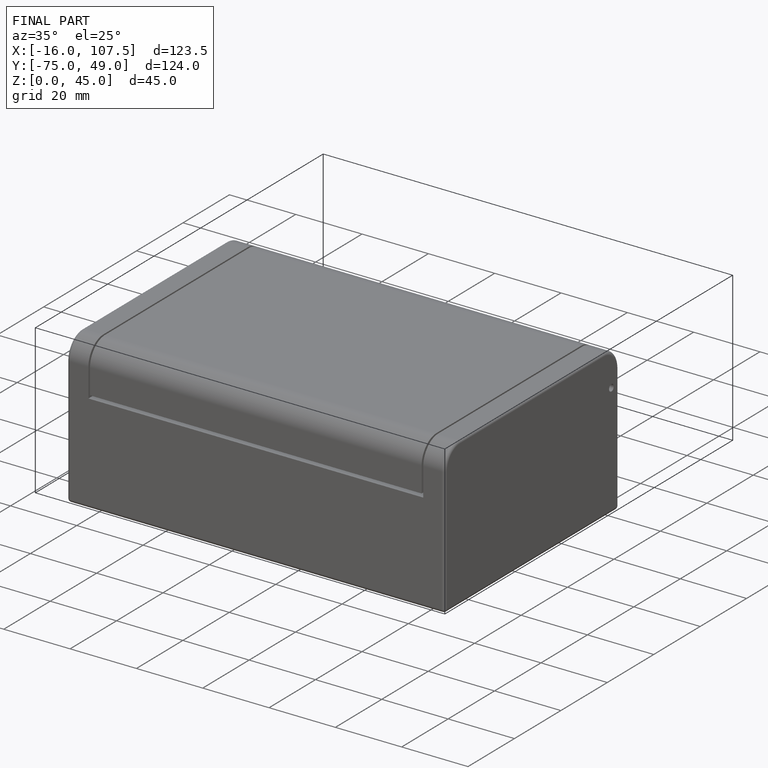
[diagram: finished part — iso view with bounding-box wireframe]
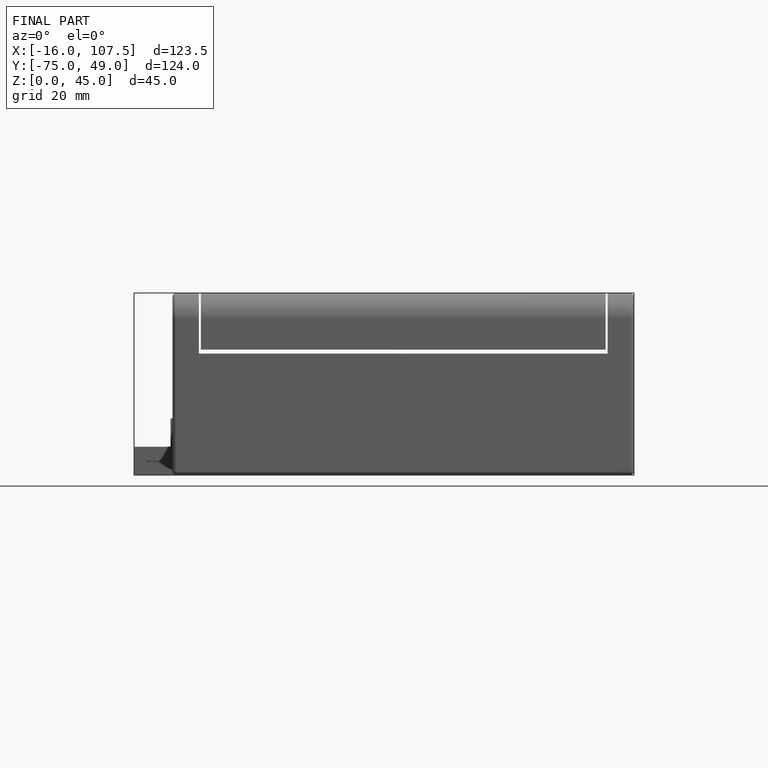
[diagram: finished part — front view with bounding-box wireframe]
